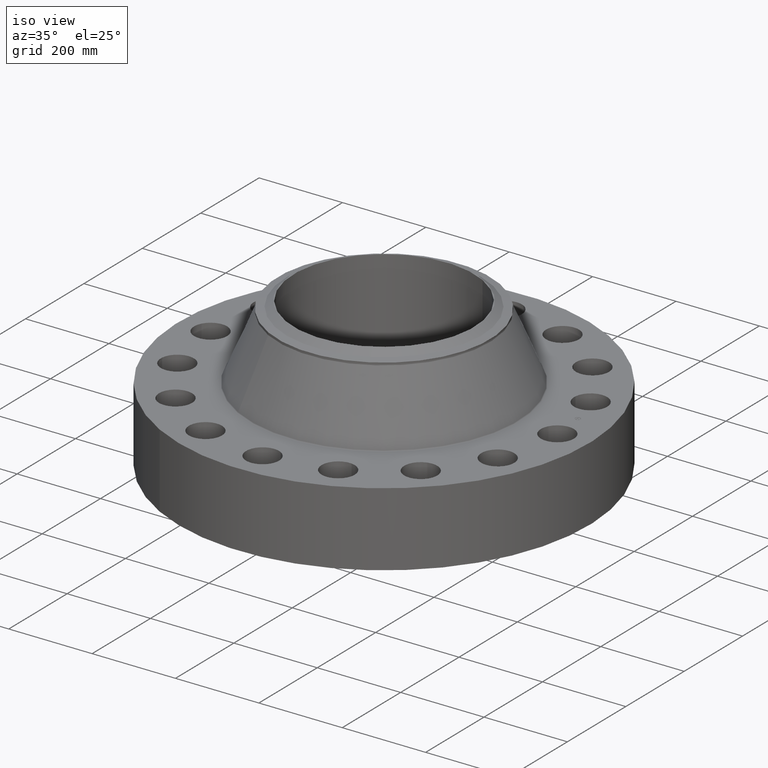
[diagram: clean part render]
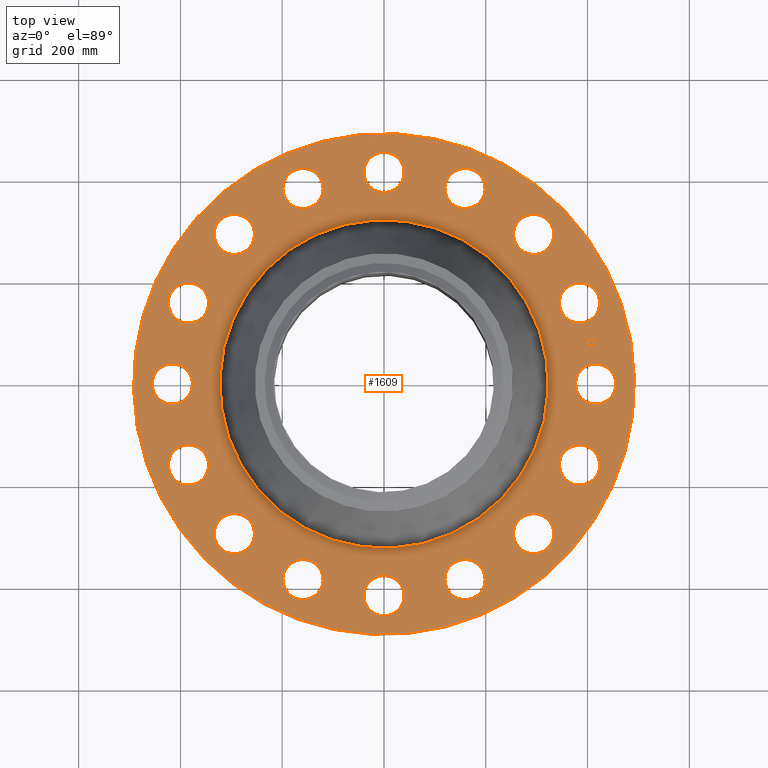
[diagram: tour spotlight — one face highlighted and labeled with its STEP entity id]
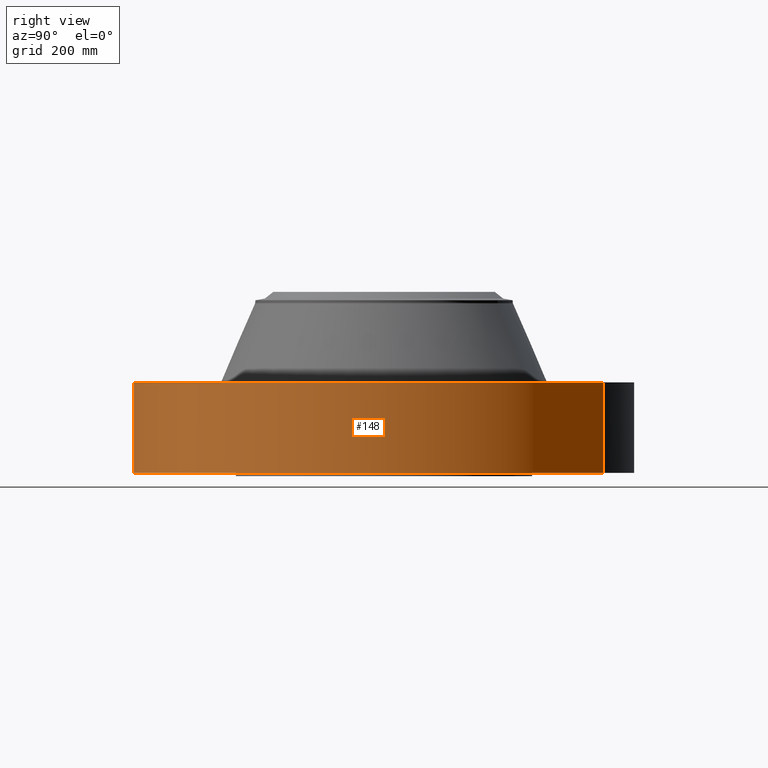
[diagram: tour spotlight — one face highlighted and labeled with its STEP entity id]
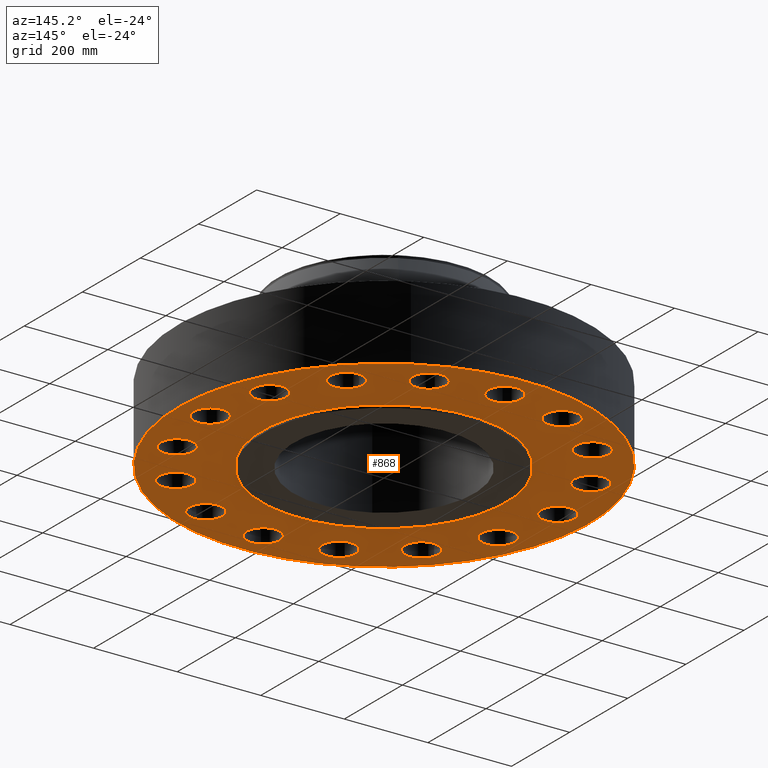
[diagram: tour spotlight — one face highlighted and labeled with its STEP entity id]
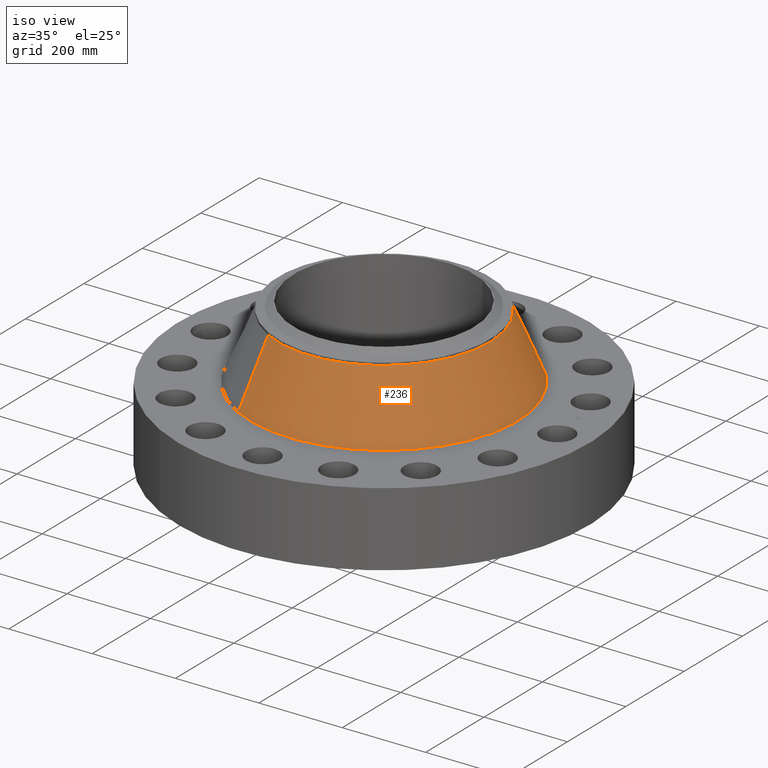
[diagram: tour spotlight — one face highlighted and labeled with its STEP entity id]
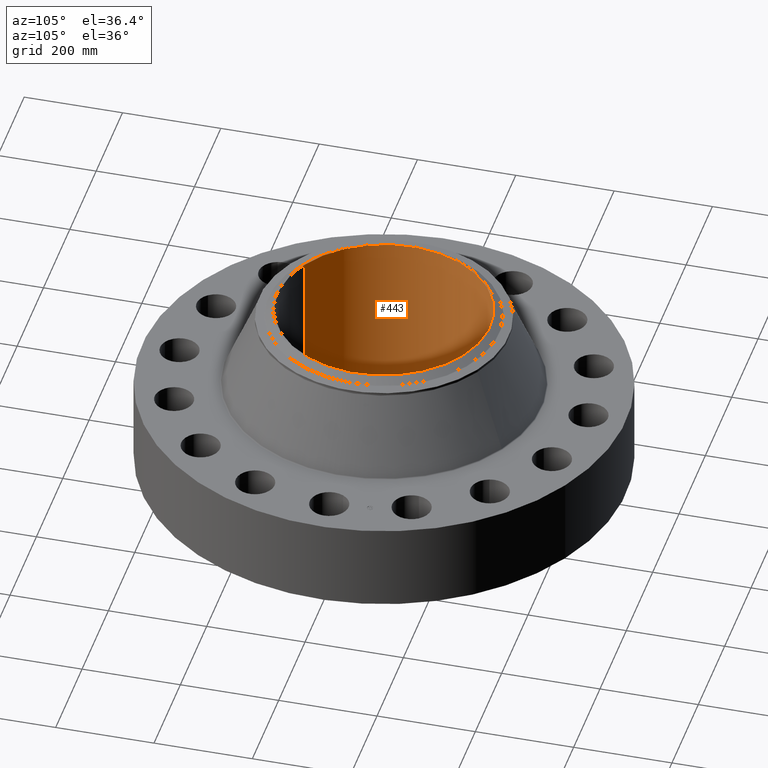
[diagram: tour spotlight — one face highlighted and labeled with its STEP entity id]
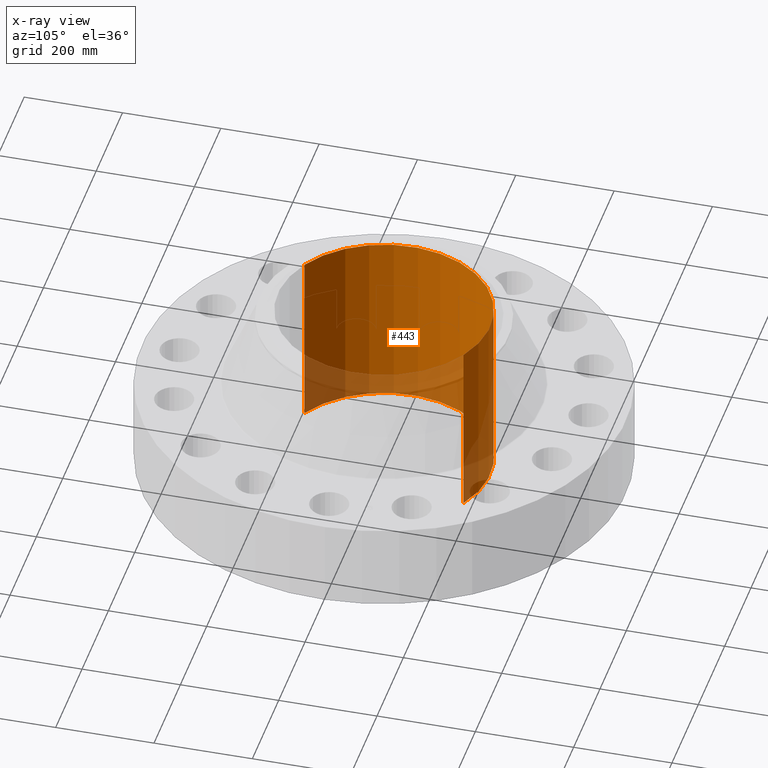
[diagram: x-ray of the same camera — body ghosted, this tour face saturated]
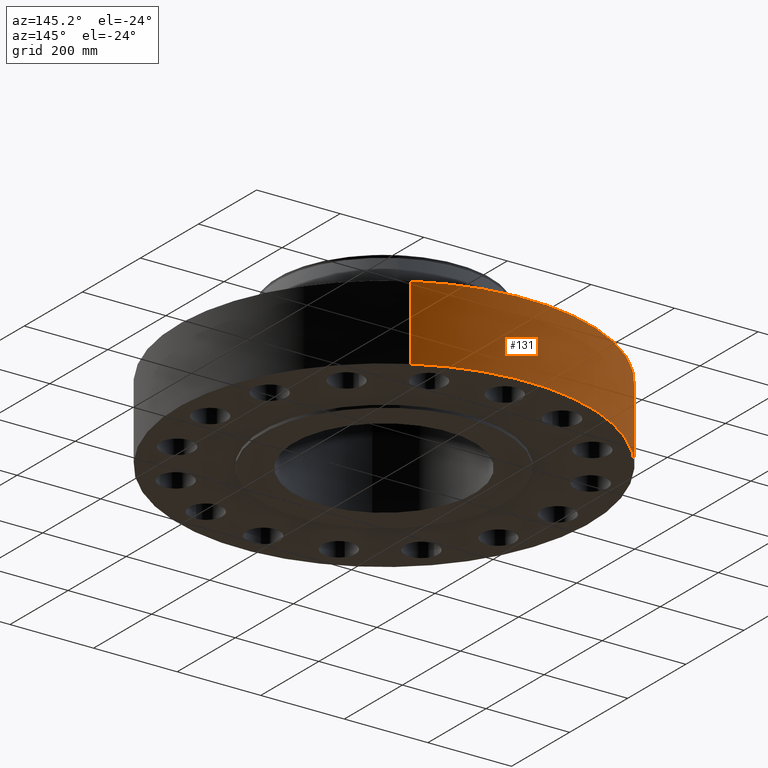
[diagram: tour spotlight — one face highlighted and labeled with its STEP entity id]
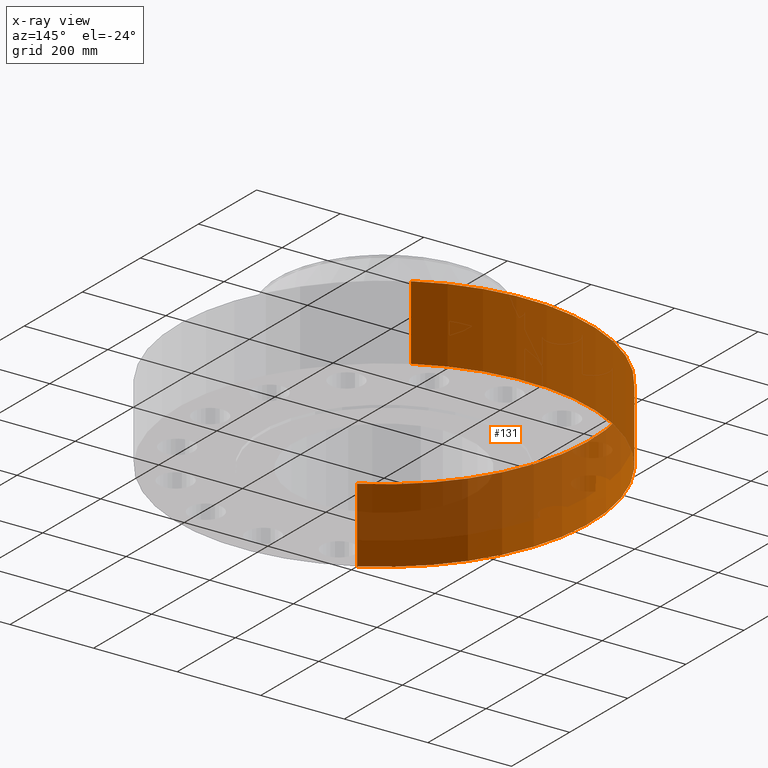
[diagram: x-ray of the same camera — body ghosted, this tour face saturated]
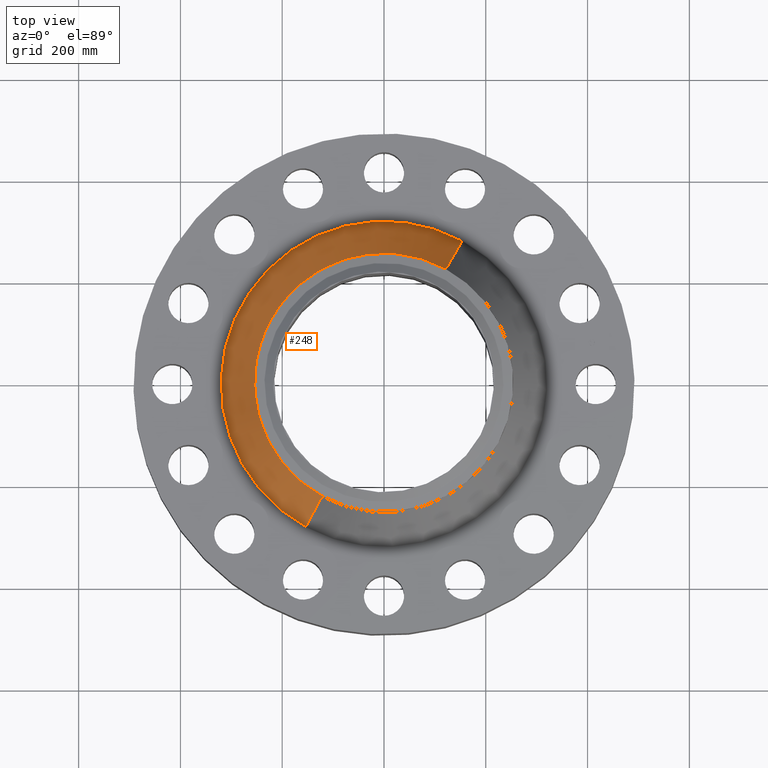
[diagram: tour spotlight — one face highlighted and labeled with its STEP entity id]
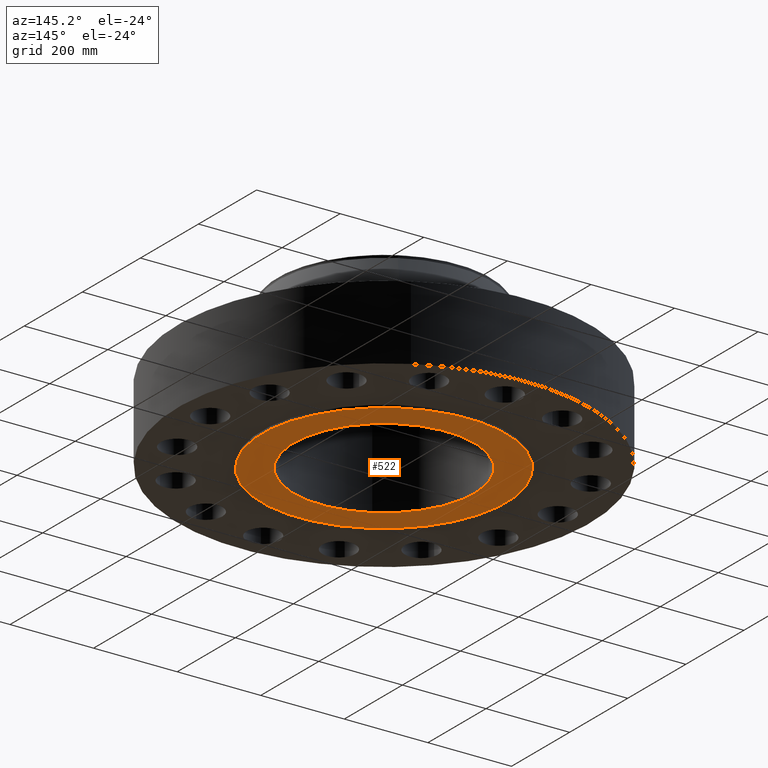
[diagram: tour spotlight — one face highlighted and labeled with its STEP entity id]
A machine part: a face-by-face anatomy tour. The part has 439 B-rep faces; the first image is the clean iso view, then the 8 largest visible faces are spotlighted one at a time (largest first), each with its STEP entity span.

Face 1 — top view, entity #1609. In plain terms, the highlighted planar face has unit normal (0, 0, -1).
Definition (entity closure, byte-faithful):
#65=AXIS2_PLACEMENT_3D('Circle Axis2P3D',#63,#64,$) ;
#82=AXIS2_PLACEMENT_3D('Circle Axis2P3D',#80,#81,$) ;
#115=AXIS2_PLACEMENT_3D('Circle Axis2P3D',#113,#114,$) ;
#139=AXIS2_PLACEMENT_3D('Circle Axis2P3D',#137,#138,$) ;
#156=AXIS2_PLACEMENT_3D('Circle Axis2P3D',#154,#155,$) ;
#191=AXIS2_PLACEMENT_3D('Circle Axis2P3D',#189,#190,$) ;
#890=AXIS2_PLACEMENT_3D('Circle Axis2P3D',#888,#889,$) ;
#902=AXIS2_PLACEMENT_3D('Circle Axis2P3D',#900,#901,$) ;
#933=AXIS2_PLACEMENT_3D('Circle Axis2P3D',#931,#932,$) ;
#945=AXIS2_PLACEMENT_3D('Circle Axis2P3D',#943,#944,$) ;
#976=AXIS2_PLACEMENT_3D('Circle Axis2P3D',#974,#975,$) ;
#988=AXIS2_PLACEMENT_3D('Circle Axis2P3D',#986,#987,$) ;
#1019=AXIS2_PLACEMENT_3D('Circle Axis2P3D',#1017,#1018,$) ;
#1031=AXIS2_PLACEMENT_3D('Circle Axis2P3D',#1029,#1030,$) ;
#1062=AXIS2_PLACEMENT_3D('Circle Axis2P3D',#1060,#1061,$) ;
#1074=AXIS2_PLACEMENT_3D('Circle Axis2P3D',#1072,#1073,$) ;
#1105=AXIS2_PLACEMENT_3D('Circle Axis2P3D',#1103,#1104,$) ;
#1117=AXIS2_PLACEMENT_3D('Circle Axis2P3D',#1115,#1116,$) ;
#1148=AXIS2_PLACEMENT_3D('Circle Axis2P3D',#1146,#1147,$) ;
#1160=AXIS2_PLACEMENT_3D('Circle Axis2P3D',#1158,#1159,$) ;
#1191=AXIS2_PLACEMENT_3D('Circle Axis2P3D',#1189,#1190,$) ;
#1203=AXIS2_PLACEMENT_3D('Circle Axis2P3D',#1201,#1202,$) ;
#1234=AXIS2_PLACEMENT_3D('Circle Axis2P3D',#1232,#1233,$) ;
#1246=AXIS2_PLACEMENT_3D('Circle Axis2P3D',#1244,#1245,$) ;
#1277=AXIS2_PLACEMENT_3D('Circle Axis2P3D',#1275,#1276,$) ;
#1289=AXIS2_PLACEMENT_3D('Circle Axis2P3D',#1287,#1288,$) ;
#1320=AXIS2_PLACEMENT_3D('Circle Axis2P3D',#1318,#1319,$) ;
#1332=AXIS2_PLACEMENT_3D('Circle Axis2P3D',#1330,#1331,$) ;
#1363=AXIS2_PLACEMENT_3D('Circle Axis2P3D',#1361,#1362,$) ;
#1375=AXIS2_PLACEMENT_3D('Circle Axis2P3D',#1373,#1374,$) ;
#1406=AXIS2_PLACEMENT_3D('Circle Axis2P3D',#1404,#1405,$) ;
#1418=AXIS2_PLACEMENT_3D('Circle Axis2P3D',#1416,#1417,$) ;
#1449=AXIS2_PLACEMENT_3D('Circle Axis2P3D',#1447,#1448,$) ;
#1461=AXIS2_PLACEMENT_3D('Circle Axis2P3D',#1459,#1460,$) ;
#1492=AXIS2_PLACEMENT_3D('Circle Axis2P3D',#1490,#1491,$) ;
#1504=AXIS2_PLACEMENT_3D('Circle Axis2P3D',#1502,#1503,$) ;
#1517=AXIS2_PLACEMENT_3D('Plane Axis2P3D',#1514,#1515,#1516) ;
#1593=AXIS2_PLACEMENT_3D('Circle Axis2P3D',#1591,#1592,$) ;
#1602=AXIS2_PLACEMENT_3D('Circle Axis2P3D',#1600,#1601,$) ;
#46=CARTESIAN_POINT('Vertex',(15.0059712035,0.747903840226,7.00000000003)) ;
#60=CARTESIAN_POINT('Vertex',(17.7440287966,-0.747903840226,7.00000000003)) ;
#63=CARTESIAN_POINT('Axis2P3D Location',(16.3750000001,0.,7.00000000003)) ;
#80=CARTESIAN_POINT('Axis2P3D Location',(16.3750000001,0.,7.00000000003)) ;
#110=CARTESIAN_POINT('Vertex',(-9.28886981049,-17.0031621367,7.00000000003)) ;
#113=CARTESIAN_POINT('Axis2P3D Location',(0.,0.,7.00000000003)) ;
#117=CARTESIAN_POINT('Vertex',(9.28886981049,17.0031621367,7.00000000003)) ;
#137=CARTESIAN_POINT('Axis2P3D Location',(0.,0.,7.00000000003)) ;
#154=CARTESIAN_POINT('Axis2P3D Location',(0.,0.,7.00000000003)) ;
#158=CARTESIAN_POINT('Vertex',(6.09066517119,11.1488878129,7.00000000003)) ;
#160=CARTESIAN_POINT('Vertex',(-6.09066517119,-11.1488878129,7.00000000003)) ;
#189=CARTESIAN_POINT('Axis2P3D Location',(0.,0.,7.00000000003)) ;
#878=CARTESIAN_POINT('Vertex',(-14.149920069,5.05156351586,7.00000000003)) ;
#885=CARTESIAN_POINT('Vertex',(-16.1071346208,7.48131889415,7.00000000003)) ;
#888=CARTESIAN_POINT('Axis2P3D Location',(-15.1285273449,6.266441205,7.00000000003)) ;
#900=CARTESIAN_POINT('Axis2P3D Location',(-15.1285273449,6.266441205,7.00000000003)) ;
#921=CARTESIAN_POINT('Vertex',(11.1396718734,-10.0819761192,7.00000000003)) ;
#928=CARTESIAN_POINT('Vertex',(12.0180752106,-13.0757709648,7.00000000003)) ;
#931=CARTESIAN_POINT('Axis2P3D Location',(11.578873542,-11.578873542,7.00000000003)) ;
#943=CARTESIAN_POINT('Axis2P3D Location',(11.578873542,-11.578873542,7.00000000003)) ;
#964=CARTESIAN_POINT('Vertex',(-11.1396718734,10.0819761192,7.00000000003)) ;
#971=CARTESIAN_POINT('Vertex',(-12.0180752106,13.0757709648,7.00000000003)) ;
#974=CARTESIAN_POINT('Axis2P3D Location',(-11.578873542,11.578873542,7.00000000003)) ;
#986=CARTESIAN_POINT('Axis2P3D Location',(-11.578873542,11.578873542,7.00000000003)) ;
#1007=CARTESIAN_POINT('Vertex',(6.4335096164,-13.5774992517,7.00000000003)) ;
#1014=CARTESIAN_POINT('Vertex',(6.0993727936,-16.6795554381,7.00000000003)) ;
#1017=CARTESIAN_POINT('Axis2P3D Location',(6.266441205,-15.1285273449,7.00000000003)) ;
#1029=CARTESIAN_POINT('Axis2P3D Location',(6.266441205,-15.1285273449,7.00000000003)) ;
#1050=CARTESIAN_POINT('Vertex',(-6.4335096164,13.5774992517,7.00000000003)) ;
#1057=CARTESIAN_POINT('Vertex',(-6.0993727936,16.6795554381,7.00000000003)) ;
#1060=CARTESIAN_POINT('Axis2P3D Location',(-6.266441205,15.1285273449,7.00000000003)) ;
#1072=CARTESIAN_POINT('Axis2P3D Location',(-6.266441205,15.1285273449,7.00000000003)) ;
#1093=CARTESIAN_POINT('Vertex',(0.747903840226,-15.0059712035,7.00000000003)) ;
#1100=CARTESIAN_POINT('Vertex',(-0.747903840226,-17.7440287966,7.00000000003)) ;
#1103=CARTESIAN_POINT('Axis2P3D Location',(-1.2352503096E-015,-16.3750000001,7.00000000003)) ;
#1115=CARTESIAN_POINT('Axis2P3D Location',(-1.2352503096E-015,-16.3750000001,7.00000000003)) ;
#1136=CARTESIAN_POINT('Vertex',(-0.747903840226,15.0059712035,7.00000000003)) ;
#1143=CARTESIAN_POINT('Vertex',(0.747903840226,17.7440287966,7.00000000003)) ;
#1146=CARTESIAN_POINT('Axis2P3D Location',(-7.70108824008E-016,16.3750000001,7.00000000003)) ;
#1158=CARTESIAN_POINT('Axis2P3D Location',(-7.70108824008E-016,16.3750000001,7.00000000003)) ;
#1179=CARTESIAN_POINT('Vertex',(-5.05156351586,-14.149920069,7.00000000003)) ;
#1186=CARTESIAN_POINT('Vertex',(-7.48131889415,-16.1071346208,7.00000000003)) ;
#1189=CARTESIAN_POINT('Axis2P3D Location',(-6.266441205,-15.1285273449,7.00000000003)) ;
#1201=CARTESIAN_POINT('Axis2P3D Location',(-6.266441205,-15.1285273449,7.00000000003)) ;
#1222=CARTESIAN_POINT('Vertex',(5.05156351586,14.149920069,7.00000000003)) ;
#1229=CARTESIAN_POINT('Vertex',(7.48131889415,16.1071346208,7.00000000003)) ;
#1232=CARTESIAN_POINT('Axis2P3D Location',(6.266441205,15.1285273449,7.00000000003)) ;
#1244=CARTESIAN_POINT('Axis2P3D Location',(6.266441205,15.1285273449,7.00000000003)) ;
#1265=CARTESIAN_POINT('Vertex',(-10.0819761192,-11.1396718734,7.00000000003)) ;
#1272=CARTESIAN_POINT('Vertex',(-13.0757709648,-12.0180752106,7.00000000003)) ;
#1275=CARTESIAN_POINT('Axis2P3D Location',(-11.578873542,-11.578873542,7.00000000003)) ;
#1287=CARTESIAN_POINT('Axis2P3D Location',(-11.578873542,-11.578873542,7.00000000003)) ;
#1308=CARTESIAN_POINT('Vertex',(10.0819761192,11.1396718734,7.00000000003)) ;
#1315=CARTESIAN_POINT('Vertex',(13.0757709648,12.0180752106,7.00000000003)) ;
#1318=CARTESIAN_POINT('Axis2P3D Location',(11.578873542,11.578873542,7.00000000003)) ;
#1330=CARTESIAN_POINT('Axis2P3D Location',(11.578873542,11.578873542,7.00000000003)) ;
#1351=CARTESIAN_POINT('Vertex',(-13.5774992517,-6.4335096164,7.00000000003)) ;
#1358=CARTESIAN_POINT('Vertex',(-16.6795554381,-6.0993727936,7.00000000003)) ;
#1361=CARTESIAN_POINT('Axis2P3D Location',(-15.1285273449,-6.266441205,7.00000000003)) ;
#1373=CARTESIAN_POINT('Axis2P3D Location',(-15.1285273449,-6.266441205,7.00000000003)) ;
#1394=CARTESIAN_POINT('Vertex',(13.5774992517,6.4335096164,7.00000000003)) ;
#1401=CARTESIAN_POINT('Vertex',(16.6795554381,6.0993727936,7.00000000003)) ;
#1404=CARTESIAN_POINT('Axis2P3D Location',(15.1285273449,6.266441205,7.00000000003)) ;
#1416=CARTESIAN_POINT('Axis2P3D Location',(15.1285273449,6.266441205,7.00000000003)) ;
#1437=CARTESIAN_POINT('Vertex',(-15.0059712035,-0.747903840226,7.00000000003)) ;
#1444=CARTESIAN_POINT('Vertex',(-17.7440287966,0.747903840226,7.00000000003)) ;
#1447=CARTESIAN_POINT('Axis2P3D Location',(-16.3750000001,-2.00535913361E-015,7.00000000003)) ;
#1459=CARTESIAN_POINT('Axis2P3D Location',(-16.3750000001,-2.00535913361E-015,7.00000000003)) ;
#1480=CARTESIAN_POINT('Vertex',(14.149920069,-5.05156351586,7.00000000003)) ;
#1487=CARTESIAN_POINT('Vertex',(16.1071346208,-7.48131889415,7.00000000003)) ;
#1490=CARTESIAN_POINT('Axis2P3D Location',(15.1285273449,-6.266441205,7.00000000003)) ;
#1502=CARTESIAN_POINT('Axis2P3D Location',(15.1285273449,-6.266441205,7.00000000003)) ;
#1514=CARTESIAN_POINT('Axis2P3D Location',(0.,19.3750000001,7.00000000003)) ;
#1591=CARTESIAN_POINT('Axis2P3D Location',(16.0603589667,3.19460402303,7.00000000003)) ;
#1595=CARTESIAN_POINT('Vertex',(16.012074112,3.43734837993,7.00000000003)) ;
#1597=CARTESIAN_POINT('Vertex',(16.1086438214,2.95185966613,7.00000000003)) ;
#1600=CARTESIAN_POINT('Axis2P3D Location',(16.0603589667,3.19460402303,7.00000000003)) ;
#64=DIRECTION('Axis2P3D Direction',(0.,-0.,-0.0393700787402)) ;
#81=DIRECTION('Axis2P3D Direction',(0.,-0.,-0.0393700787402)) ;
#114=DIRECTION('Axis2P3D Direction',(0.,0.,-0.0393700787402)) ;
#138=DIRECTION('Axis2P3D Direction',(0.,0.,-0.0393700787402)) ;
#155=DIRECTION('Axis2P3D Direction',(0.,0.,-0.0393700787402)) ;
#190=DIRECTION('Axis2P3D Direction',(0.,0.,-0.0393700787402)) ;
#889=DIRECTION('Axis2P3D Direction',(0.,0.,-0.0393700787402)) ;
#901=DIRECTION('Axis2P3D Direction',(0.,0.,-0.0393700787402)) ;
#932=DIRECTION('Axis2P3D Direction',(0.,-0.,-0.0393700787402)) ;
#944=DIRECTION('Axis2P3D Direction',(0.,-0.,-0.0393700787402)) ;
#975=DIRECTION('Axis2P3D Direction',(0.,0.,-0.0393700787402)) ;
#987=DIRECTION('Axis2P3D Direction',(0.,0.,-0.0393700787402)) ;
#1018=DIRECTION('Axis2P3D Direction',(0.,-0.,-0.0393700787402)) ;
#1030=DIRECTION('Axis2P3D Direction',(0.,-0.,-0.0393700787402)) ;
#1061=DIRECTION('Axis2P3D Direction',(0.,0.,-0.0393700787402)) ;
#1073=DIRECTION('Axis2P3D Direction',(0.,0.,-0.0393700787402)) ;
#1104=DIRECTION('Axis2P3D Direction',(0.,-0.,-0.0393700787402)) ;
#1116=DIRECTION('Axis2P3D Direction',(0.,-0.,-0.0393700787402)) ;
#1147=DIRECTION('Axis2P3D Direction',(0.,0.,-0.0393700787402)) ;
#1159=DIRECTION('Axis2P3D Direction',(0.,0.,-0.0393700787402)) ;
#1190=DIRECTION('Axis2P3D Direction',(-0.,0.,-0.0393700787402)) ;
#1202=DIRECTION('Axis2P3D Direction',(-0.,0.,-0.0393700787402)) ;
#1233=DIRECTION('Axis2P3D Direction',(0.,0.,-0.0393700787402)) ;
#1245=DIRECTION('Axis2P3D Direction',(0.,0.,-0.0393700787402)) ;
#1276=DIRECTION('Axis2P3D Direction',(-0.,0.,-0.0393700787402)) ;
#1288=DIRECTION('Axis2P3D Direction',(-0.,0.,-0.0393700787402)) ;
#1319=DIRECTION('Axis2P3D Direction',(0.,0.,-0.0393700787402)) ;
#1331=DIRECTION('Axis2P3D Direction',(0.,0.,-0.0393700787402)) ;
#1362=DIRECTION('Axis2P3D Direction',(-0.,0.,-0.0393700787402)) ;
#1374=DIRECTION('Axis2P3D Direction',(-0.,0.,-0.0393700787402)) ;
#1405=DIRECTION('Axis2P3D Direction',(0.,0.,-0.0393700787402)) ;
#1417=DIRECTION('Axis2P3D Direction',(0.,0.,-0.0393700787402)) ;
#1448=DIRECTION('Axis2P3D Direction',(-0.,0.,-0.0393700787402)) ;
#1460=DIRECTION('Axis2P3D Direction',(-0.,0.,-0.0393700787402)) ;
#1491=DIRECTION('Axis2P3D Direction',(0.,-0.,-0.0393700787402)) ;
#1503=DIRECTION('Axis2P3D Direction',(0.,-0.,-0.0393700787402)) ;
#1515=DIRECTION('Axis2P3D Direction',(0.,0.,-0.0393700787402)) ;
#1516=DIRECTION('Axis2P3D XDirection',(0.0393700787402,0.,0.)) ;
#1592=DIRECTION('Axis2P3D Direction',(0.,0.,-0.0393700787402)) ;
#1601=DIRECTION('Axis2P3D Direction',(0.,0.,-0.0393700787402)) ;
#1520=ORIENTED_EDGE('',*,*,#141,.F.) ;
#1521=ORIENTED_EDGE('',*,*,#119,.F.) ;
#1524=ORIENTED_EDGE('',*,*,#67,.T.) ;
#1525=ORIENTED_EDGE('',*,*,#84,.T.) ;
#1528=ORIENTED_EDGE('',*,*,#193,.T.) ;
#1529=ORIENTED_EDGE('',*,*,#162,.T.) ;
#1532=ORIENTED_EDGE('',*,*,#1506,.T.) ;
#1533=ORIENTED_EDGE('',*,*,#1494,.T.) ;
#1536=ORIENTED_EDGE('',*,*,#947,.T.) ;
#1537=ORIENTED_EDGE('',*,*,#935,.T.) ;
#1540=ORIENTED_EDGE('',*,*,#1033,.T.) ;
#1541=ORIENTED_EDGE('',*,*,#1021,.T.) ;
#1544=ORIENTED_EDGE('',*,*,#1119,.T.) ;
#1545=ORIENTED_EDGE('',*,*,#1107,.T.) ;
#1548=ORIENTED_EDGE('',*,*,#1205,.T.) ;
#1549=ORIENTED_EDGE('',*,*,#1193,.T.) ;
#1552=ORIENTED_EDGE('',*,*,#1291,.T.) ;
#1553=ORIENTED_EDGE('',*,*,#1279,.T.) ;
#1556=ORIENTED_EDGE('',*,*,#1377,.T.) ;
#1557=ORIENTED_EDGE('',*,*,#1365,.T.) ;
#1560=ORIENTED_EDGE('',*,*,#1463,.T.) ;
#1561=ORIENTED_EDGE('',*,*,#1451,.T.) ;
#1564=ORIENTED_EDGE('',*,*,#904,.T.) ;
#1565=ORIENTED_EDGE('',*,*,#892,.T.) ;
#1568=ORIENTED_EDGE('',*,*,#990,.T.) ;
#1569=ORIENTED_EDGE('',*,*,#978,.T.) ;
#1572=ORIENTED_EDGE('',*,*,#1076,.T.) ;
#1573=ORIENTED_EDGE('',*,*,#1064,.T.) ;
#1576=ORIENTED_EDGE('',*,*,#1162,.T.) ;
#1577=ORIENTED_EDGE('',*,*,#1150,.T.) ;
#1580=ORIENTED_EDGE('',*,*,#1248,.T.) ;
#1581=ORIENTED_EDGE('',*,*,#1236,.T.) ;
#1584=ORIENTED_EDGE('',*,*,#1334,.T.) ;
#1585=ORIENTED_EDGE('',*,*,#1322,.T.) ;
#1588=ORIENTED_EDGE('',*,*,#1420,.T.) ;
#1589=ORIENTED_EDGE('',*,*,#1408,.T.) ;
#1606=ORIENTED_EDGE('',*,*,#1599,.T.) ;
#1607=ORIENTED_EDGE('',*,*,#1604,.T.) ;
#1526=FACE_BOUND('',#1523,.T.) ;
#1530=FACE_BOUND('',#1527,.T.) ;
#1534=FACE_BOUND('',#1531,.T.) ;
#1538=FACE_BOUND('',#1535,.T.) ;
#1542=FACE_BOUND('',#1539,.T.) ;
#1546=FACE_BOUND('',#1543,.T.) ;
#1550=FACE_BOUND('',#1547,.T.) ;
#1554=FACE_BOUND('',#1551,.T.) ;
#1558=FACE_BOUND('',#1555,.T.) ;
#1562=FACE_BOUND('',#1559,.T.) ;
#1566=FACE_BOUND('',#1563,.T.) ;
#1570=FACE_BOUND('',#1567,.T.) ;
#1574=FACE_BOUND('',#1571,.T.) ;
#1578=FACE_BOUND('',#1575,.T.) ;
#1582=FACE_BOUND('',#1579,.T.) ;
#1586=FACE_BOUND('',#1583,.T.) ;
#1590=FACE_BOUND('',#1587,.T.) ;
#1608=FACE_BOUND('',#1605,.T.) ;
#1609=ADVANCED_FACE('PartBody',(#1522,#1526,#1530,#1534,#1538,#1542,#1546,#1550,#1554,#1558,#1562,#1566,#1570,#1574,#1578,#1582,#1586,#1590,#1608),#1518,.F.) ;
#66=CIRCLE('generated circle',#65,1.56000000001) ;
#83=CIRCLE('generated circle',#82,1.56000000001) ;
#116=CIRCLE('generated circle',#115,19.3750000001) ;
#140=CIRCLE('generated circle',#139,19.3750000001) ;
#157=CIRCLE('generated circle',#156,12.7040899593) ;
#192=CIRCLE('generated circle',#191,12.7040899593) ;
#891=CIRCLE('generated circle',#890,1.56000000001) ;
#903=CIRCLE('generated circle',#902,1.56000000001) ;
#934=CIRCLE('generated circle',#933,1.56000000001) ;
#946=CIRCLE('generated circle',#945,1.56000000001) ;
#977=CIRCLE('generated circle',#976,1.56000000001) ;
#989=CIRCLE('generated circle',#988,1.56000000001) ;
#1020=CIRCLE('generated circle',#1019,1.56000000001) ;
#1032=CIRCLE('generated circle',#1031,1.56000000001) ;
#1063=CIRCLE('generated circle',#1062,1.56000000001) ;
#1075=CIRCLE('generated circle',#1074,1.56000000001) ;
#1106=CIRCLE('generated circle',#1105,1.56000000001) ;
#1118=CIRCLE('generated circle',#1117,1.56000000001) ;
#1149=CIRCLE('generated circle',#1148,1.56000000001) ;
#1161=CIRCLE('generated circle',#1160,1.56000000001) ;
#1192=CIRCLE('generated circle',#1191,1.56000000001) ;
#1204=CIRCLE('generated circle',#1203,1.56000000001) ;
#1235=CIRCLE('generated circle',#1234,1.56000000001) ;
#1247=CIRCLE('generated circle',#1246,1.56000000001) ;
#1278=CIRCLE('generated circle',#1277,1.56000000001) ;
#1290=CIRCLE('generated circle',#1289,1.56000000001) ;
#1321=CIRCLE('generated circle',#1320,1.56000000001) ;
#1333=CIRCLE('generated circle',#1332,1.56000000001) ;
#1364=CIRCLE('generated circle',#1363,1.56000000001) ;
#1376=CIRCLE('generated circle',#1375,1.56000000001) ;
#1407=CIRCLE('generated circle',#1406,1.56000000001) ;
#1419=CIRCLE('generated circle',#1418,1.56000000001) ;
#1450=CIRCLE('generated circle',#1449,1.56000000001) ;
#1462=CIRCLE('generated circle',#1461,1.56000000001) ;
#1493=CIRCLE('generated circle',#1492,1.56000000001) ;
#1505=CIRCLE('generated circle',#1504,1.56000000001) ;
#1594=CIRCLE('generated circle',#1593,0.247500000001) ;
#1603=CIRCLE('generated circle',#1602,0.247500000001) ;
#67=EDGE_CURVE('',#47,#61,#66,.T.) ;
#84=EDGE_CURVE('',#61,#47,#83,.T.) ;
#119=EDGE_CURVE('',#111,#118,#116,.T.) ;
#141=EDGE_CURVE('',#118,#111,#140,.T.) ;
#162=EDGE_CURVE('',#159,#161,#157,.T.) ;
#193=EDGE_CURVE('',#161,#159,#192,.T.) ;
#892=EDGE_CURVE('',#879,#886,#891,.T.) ;
#904=EDGE_CURVE('',#886,#879,#903,.T.) ;
#935=EDGE_CURVE('',#922,#929,#934,.T.) ;
#947=EDGE_CURVE('',#929,#922,#946,.T.) ;
#978=EDGE_CURVE('',#965,#972,#977,.T.) ;
#990=EDGE_CURVE('',#972,#965,#989,.T.) ;
#1021=EDGE_CURVE('',#1008,#1015,#1020,.T.) ;
#1033=EDGE_CURVE('',#1015,#1008,#1032,.T.) ;
#1064=EDGE_CURVE('',#1051,#1058,#1063,.T.) ;
#1076=EDGE_CURVE('',#1058,#1051,#1075,.T.) ;
#1107=EDGE_CURVE('',#1094,#1101,#1106,.T.) ;
#1119=EDGE_CURVE('',#1101,#1094,#1118,.T.) ;
#1150=EDGE_CURVE('',#1137,#1144,#1149,.T.) ;
#1162=EDGE_CURVE('',#1144,#1137,#1161,.T.) ;
#1193=EDGE_CURVE('',#1180,#1187,#1192,.T.) ;
#1205=EDGE_CURVE('',#1187,#1180,#1204,.T.) ;
#1236=EDGE_CURVE('',#1223,#1230,#1235,.T.) ;
#1248=EDGE_CURVE('',#1230,#1223,#1247,.T.) ;
#1279=EDGE_CURVE('',#1266,#1273,#1278,.T.) ;
#1291=EDGE_CURVE('',#1273,#1266,#1290,.T.) ;
#1322=EDGE_CURVE('',#1309,#1316,#1321,.T.) ;
#1334=EDGE_CURVE('',#1316,#1309,#1333,.T.) ;
#1365=EDGE_CURVE('',#1352,#1359,#1364,.T.) ;
#1377=EDGE_CURVE('',#1359,#1352,#1376,.T.) ;
#1408=EDGE_CURVE('',#1395,#1402,#1407,.T.) ;
#1420=EDGE_CURVE('',#1402,#1395,#1419,.T.) ;
#1451=EDGE_CURVE('',#1438,#1445,#1450,.T.) ;
#1463=EDGE_CURVE('',#1445,#1438,#1462,.T.) ;
#1494=EDGE_CURVE('',#1481,#1488,#1493,.T.) ;
#1506=EDGE_CURVE('',#1488,#1481,#1505,.T.) ;
#1599=EDGE_CURVE('',#1596,#1598,#1594,.T.) ;
#1604=EDGE_CURVE('',#1598,#1596,#1603,.T.) ;
#1519=EDGE_LOOP('',(#1520,#1521)) ;
#1523=EDGE_LOOP('',(#1524,#1525)) ;
#1527=EDGE_LOOP('',(#1528,#1529)) ;
#1531=EDGE_LOOP('',(#1532,#1533)) ;
#1535=EDGE_LOOP('',(#1536,#1537)) ;
#1539=EDGE_LOOP('',(#1540,#1541)) ;
#1543=EDGE_LOOP('',(#1544,#1545)) ;
#1547=EDGE_LOOP('',(#1548,#1549)) ;
#1551=EDGE_LOOP('',(#1552,#1553)) ;
#1555=EDGE_LOOP('',(#1556,#1557)) ;
#1559=EDGE_LOOP('',(#1560,#1561)) ;
#1563=EDGE_LOOP('',(#1564,#1565)) ;
#1567=EDGE_LOOP('',(#1568,#1569)) ;
#1571=EDGE_LOOP('',(#1572,#1573)) ;
#1575=EDGE_LOOP('',(#1576,#1577)) ;
#1579=EDGE_LOOP('',(#1580,#1581)) ;
#1583=EDGE_LOOP('',(#1584,#1585)) ;
#1587=EDGE_LOOP('',(#1588,#1589)) ;
#1605=EDGE_LOOP('',(#1606,#1607)) ;
#1522=FACE_OUTER_BOUND('',#1519,.T.) ;
#1518=PLANE('',#1517) ;
#47=VERTEX_POINT('',#46) ;
#61=VERTEX_POINT('',#60) ;
#111=VERTEX_POINT('',#110) ;
#118=VERTEX_POINT('',#117) ;
#159=VERTEX_POINT('',#158) ;
#161=VERTEX_POINT('',#160) ;
#879=VERTEX_POINT('',#878) ;
#886=VERTEX_POINT('',#885) ;
#922=VERTEX_POINT('',#921) ;
#929=VERTEX_POINT('',#928) ;
#965=VERTEX_POINT('',#964) ;
#972=VERTEX_POINT('',#971) ;
#1008=VERTEX_POINT('',#1007) ;
#1015=VERTEX_POINT('',#1014) ;
#1051=VERTEX_POINT('',#1050) ;
#1058=VERTEX_POINT('',#1057) ;
#1094=VERTEX_POINT('',#1093) ;
#1101=VERTEX_POINT('',#1100) ;
#1137=VERTEX_POINT('',#1136) ;
#1144=VERTEX_POINT('',#1143) ;
#1180=VERTEX_POINT('',#1179) ;
#1187=VERTEX_POINT('',#1186) ;
#1223=VERTEX_POINT('',#1222) ;
#1230=VERTEX_POINT('',#1229) ;
#1266=VERTEX_POINT('',#1265) ;
#1273=VERTEX_POINT('',#1272) ;
#1309=VERTEX_POINT('',#1308) ;
#1316=VERTEX_POINT('',#1315) ;
#1352=VERTEX_POINT('',#1351) ;
#1359=VERTEX_POINT('',#1358) ;
#1395=VERTEX_POINT('',#1394) ;
#1402=VERTEX_POINT('',#1401) ;
#1438=VERTEX_POINT('',#1437) ;
#1445=VERTEX_POINT('',#1444) ;
#1481=VERTEX_POINT('',#1480) ;
#1488=VERTEX_POINT('',#1487) ;
#1596=VERTEX_POINT('',#1595) ;
#1598=VERTEX_POINT('',#1597) ;

Face 2 — right view, entity #148. In plain terms, the highlighted cylindrical surface (partial cylindrical patch) has radius 492.125 mm, axis along (0, 0, -1).
Definition (entity closure, byte-faithful):
#95=AXIS2_PLACEMENT_3D('Cylinder Axis2P3D',#92,#93,#94) ;
#134=AXIS2_PLACEMENT_3D('Circle Axis2P3D',#132,#133,$) ;
#139=AXIS2_PLACEMENT_3D('Circle Axis2P3D',#137,#138,$) ;
#92=CARTESIAN_POINT('Axis2P3D Location',(0.,0.,6.87500000003)) ;
#101=CARTESIAN_POINT('Vertex',(-9.28886981049,-17.0031621367,2.23792987641E-015)) ;
#103=CARTESIAN_POINT('Vertex',(9.28886981049,17.0031621367,2.23792987641E-015)) ;
#106=CARTESIAN_POINT('Line Origine',(-9.28886981049,-17.0031621367,3.50000000001)) ;
#110=CARTESIAN_POINT('Vertex',(-9.28886981049,-17.0031621367,7.00000000003)) ;
#117=CARTESIAN_POINT('Vertex',(9.28886981049,17.0031621367,7.00000000003)) ;
#120=CARTESIAN_POINT('Line Origine',(9.28886981049,17.0031621367,3.50000000001)) ;
#132=CARTESIAN_POINT('Axis2P3D Location',(0.,0.,2.23792987641E-015)) ;
#137=CARTESIAN_POINT('Axis2P3D Location',(0.,0.,7.00000000003)) ;
#93=DIRECTION('Axis2P3D Direction',(0.,0.,-0.0393700787402)) ;
#94=DIRECTION('Axis2P3D XDirection',(0.0188750212049,0.0345504945626,0.)) ;
#107=DIRECTION('Vector Direction',(0.,0.,-0.0393700787402)) ;
#121=DIRECTION('Vector Direction',(0.,0.,-0.0393700787402)) ;
#133=DIRECTION('Axis2P3D Direction',(0.,0.,-0.0393700787402)) ;
#138=DIRECTION('Axis2P3D Direction',(0.,0.,-0.0393700787402)) ;
#108=VECTOR('Line Direction',#107,0.0393700787402) ;
#122=VECTOR('Line Direction',#121,0.0393700787402) ;
#143=ORIENTED_EDGE('',*,*,#136,.F.) ;
#144=ORIENTED_EDGE('',*,*,#124,.T.) ;
#145=ORIENTED_EDGE('',*,*,#141,.T.) ;
#146=ORIENTED_EDGE('',*,*,#112,.F.) ;
#148=ADVANCED_FACE('PartBody',(#147),#96,.T.) ;
#135=CIRCLE('generated circle',#134,19.3750000001) ;
#140=CIRCLE('generated circle',#139,19.3750000001) ;
#96=CYLINDRICAL_SURFACE('generated cylinder',#95,19.3750000001) ;
#112=EDGE_CURVE('',#102,#111,#109,.F.) ;
#124=EDGE_CURVE('',#104,#118,#123,.F.) ;
#136=EDGE_CURVE('',#104,#102,#135,.T.) ;
#141=EDGE_CURVE('',#118,#111,#140,.T.) ;
#142=EDGE_LOOP('',(#143,#144,#145,#146)) ;
#147=FACE_OUTER_BOUND('',#142,.T.) ;
#109=LINE('Line',#106,#108) ;
#123=LINE('Line',#120,#122) ;
#102=VERTEX_POINT('',#101) ;
#104=VERTEX_POINT('',#103) ;
#111=VERTEX_POINT('',#110) ;
#118=VERTEX_POINT('',#117) ;

Face 3 — auxiliary view, entity #868. In plain terms, the highlighted planar face has unit normal (0, 0, -1).
Definition (entity closure, byte-faithful):
#51=AXIS2_PLACEMENT_3D('Circle Axis2P3D',#49,#50,$) ;
#77=AXIS2_PLACEMENT_3D('Circle Axis2P3D',#75,#76,$) ;
#99=AXIS2_PLACEMENT_3D('Circle Axis2P3D',#97,#98,$) ;
#134=AXIS2_PLACEMENT_3D('Circle Axis2P3D',#132,#133,$) ;
#552=AXIS2_PLACEMENT_3D('Circle Axis2P3D',#550,#551,$) ;
#571=AXIS2_PLACEMENT_3D('Circle Axis2P3D',#569,#570,$) ;
#584=AXIS2_PLACEMENT_3D('Plane Axis2P3D',#581,#582,#583) ;
#600=AXIS2_PLACEMENT_3D('Circle Axis2P3D',#598,#599,$) ;
#609=AXIS2_PLACEMENT_3D('Circle Axis2P3D',#607,#608,$) ;
#618=AXIS2_PLACEMENT_3D('Circle Axis2P3D',#616,#617,$) ;
#627=AXIS2_PLACEMENT_3D('Circle Axis2P3D',#625,#626,$) ;
#636=AXIS2_PLACEMENT_3D('Circle Axis2P3D',#634,#635,$) ;
#645=AXIS2_PLACEMENT_3D('Circle Axis2P3D',#643,#644,$) ;
#654=AXIS2_PLACEMENT_3D('Circle Axis2P3D',#652,#653,$) ;
#663=AXIS2_PLACEMENT_3D('Circle Axis2P3D',#661,#662,$) ;
#672=AXIS2_PLACEMENT_3D('Circle Axis2P3D',#670,#671,$) ;
#681=AXIS2_PLACEMENT_3D('Circle Axis2P3D',#679,#680,$) ;
#690=AXIS2_PLACEMENT_3D('Circle Axis2P3D',#688,#689,$) ;
#699=AXIS2_PLACEMENT_3D('Circle Axis2P3D',#697,#698,$) ;
#708=AXIS2_PLACEMENT_3D('Circle Axis2P3D',#706,#707,$) ;
#717=AXIS2_PLACEMENT_3D('Circle Axis2P3D',#715,#716,$) ;
#726=AXIS2_PLACEMENT_3D('Circle Axis2P3D',#724,#725,$) ;
#735=AXIS2_PLACEMENT_3D('Circle Axis2P3D',#733,#734,$) ;
#744=AXIS2_PLACEMENT_3D('Circle Axis2P3D',#742,#743,$) ;
#753=AXIS2_PLACEMENT_3D('Circle Axis2P3D',#751,#752,$) ;
#762=AXIS2_PLACEMENT_3D('Circle Axis2P3D',#760,#761,$) ;
#771=AXIS2_PLACEMENT_3D('Circle Axis2P3D',#769,#770,$) ;
#780=AXIS2_PLACEMENT_3D('Circle Axis2P3D',#778,#779,$) ;
#789=AXIS2_PLACEMENT_3D('Circle Axis2P3D',#787,#788,$) ;
#798=AXIS2_PLACEMENT_3D('Circle Axis2P3D',#796,#797,$) ;
#807=AXIS2_PLACEMENT_3D('Circle Axis2P3D',#805,#806,$) ;
#816=AXIS2_PLACEMENT_3D('Circle Axis2P3D',#814,#815,$) ;
#825=AXIS2_PLACEMENT_3D('Circle Axis2P3D',#823,#824,$) ;
#834=AXIS2_PLACEMENT_3D('Circle Axis2P3D',#832,#833,$) ;
#843=AXIS2_PLACEMENT_3D('Circle Axis2P3D',#841,#842,$) ;
#852=AXIS2_PLACEMENT_3D('Circle Axis2P3D',#850,#851,$) ;
#861=AXIS2_PLACEMENT_3D('Circle Axis2P3D',#859,#860,$) ;
#44=CARTESIAN_POINT('Vertex',(15.0059712035,0.747903840226,0.)) ;
#49=CARTESIAN_POINT('Axis2P3D Location',(16.3750000001,0.,0.)) ;
#53=CARTESIAN_POINT('Vertex',(17.7440287966,-0.747903840226,0.)) ;
#75=CARTESIAN_POINT('Axis2P3D Location',(16.3750000001,0.,0.)) ;
#97=CARTESIAN_POINT('Axis2P3D Location',(0.,0.,2.23792987641E-015)) ;
#101=CARTESIAN_POINT('Vertex',(-9.28886981049,-17.0031621367,2.23792987641E-015)) ;
#103=CARTESIAN_POINT('Vertex',(9.28886981049,17.0031621367,2.23792987641E-015)) ;
#132=CARTESIAN_POINT('Axis2P3D Location',(0.,0.,2.23792987641E-015)) ;
#547=CARTESIAN_POINT('Vertex',(-5.51339369397,-10.0921994618,0.)) ;
#550=CARTESIAN_POINT('Axis2P3D Location',(0.,0.,1.1189649382E-015)) ;
#554=CARTESIAN_POINT('Vertex',(5.51339369397,10.0921994618,0.)) ;
#569=CARTESIAN_POINT('Axis2P3D Location',(0.,0.,1.1189649382E-015)) ;
#581=CARTESIAN_POINT('Axis2P3D Location',(0.,11.5,0.)) ;
#598=CARTESIAN_POINT('Axis2P3D Location',(15.1285273449,-6.266441205,0.)) ;
#602=CARTESIAN_POINT('Vertex',(14.149920069,-5.05156351586,0.)) ;
#604=CARTESIAN_POINT('Vertex',(16.1071346208,-7.48131889415,0.)) ;
#607=CARTESIAN_POINT('Axis2P3D Location',(15.1285273449,-6.266441205,0.)) ;
#616=CARTESIAN_POINT('Axis2P3D Location',(11.578873542,-11.578873542,0.)) ;
#620=CARTESIAN_POINT('Vertex',(11.1396718734,-10.0819761192,0.)) ;
#622=CARTESIAN_POINT('Vertex',(12.0180752106,-13.0757709648,0.)) ;
#625=CARTESIAN_POINT('Axis2P3D Location',(11.578873542,-11.578873542,0.)) ;
#634=CARTESIAN_POINT('Axis2P3D Location',(6.266441205,-15.1285273449,0.)) ;
#638=CARTESIAN_POINT('Vertex',(6.4335096164,-13.5774992517,0.)) ;
#640=CARTESIAN_POINT('Vertex',(6.0993727936,-16.6795554381,0.)) ;
#643=CARTESIAN_POINT('Axis2P3D Location',(6.266441205,-15.1285273449,0.)) ;
#652=CARTESIAN_POINT('Axis2P3D Location',(-1.53857679003E-015,-16.3750000001,0.)) ;
#656=CARTESIAN_POINT('Vertex',(0.747903840226,-15.0059712035,0.)) ;
#658=CARTESIAN_POINT('Vertex',(-0.747903840226,-17.7440287966,0.)) ;
#661=CARTESIAN_POINT('Axis2P3D Location',(-1.95818864186E-015,-16.3750000001,0.)) ;
#670=CARTESIAN_POINT('Axis2P3D Location',(-6.266441205,-15.1285273449,0.)) ;
#674=CARTESIAN_POINT('Vertex',(-5.05156351586,-14.149920069,0.)) ;
#676=CARTESIAN_POINT('Vertex',(-7.48131889415,-16.1071346208,0.)) ;
#679=CARTESIAN_POINT('Axis2P3D Location',(-6.266441205,-15.1285273449,0.)) ;
#688=CARTESIAN_POINT('Axis2P3D Location',(-11.578873542,-11.578873542,0.)) ;
#692=CARTESIAN_POINT('Vertex',(-10.0819761192,-11.1396718734,0.)) ;
#694=CARTESIAN_POINT('Vertex',(-13.0757709648,-12.0180752106,0.)) ;
#697=CARTESIAN_POINT('Axis2P3D Location',(-11.578873542,-11.578873542,0.)) ;
#706=CARTESIAN_POINT('Axis2P3D Location',(-15.1285273449,-6.266441205,0.)) ;
#710=CARTESIAN_POINT('Vertex',(-13.5774992517,-6.4335096164,0.)) ;
#712=CARTESIAN_POINT('Vertex',(-16.6795554381,-6.0993727936,0.)) ;
#715=CARTESIAN_POINT('Axis2P3D Location',(-15.1285273449,-6.266441205,0.)) ;
#724=CARTESIAN_POINT('Axis2P3D Location',(-16.3750000001,-2.23792987641E-015,0.)) ;
#728=CARTESIAN_POINT('Vertex',(-15.0059712035,-0.747903840226,0.)) ;
#730=CARTESIAN_POINT('Vertex',(-17.7440287966,0.747903840226,0.)) ;
#733=CARTESIAN_POINT('Axis2P3D Location',(-16.3750000001,-2.23792987641E-015,0.)) ;
#742=CARTESIAN_POINT('Axis2P3D Location',(-15.1285273449,6.266441205,0.)) ;
#746=CARTESIAN_POINT('Vertex',(-14.149920069,5.05156351586,0.)) ;
#748=CARTESIAN_POINT('Vertex',(-16.1071346208,7.48131889415,0.)) ;
#751=CARTESIAN_POINT('Axis2P3D Location',(-15.1285273449,6.266441205,0.)) ;
#760=CARTESIAN_POINT('Axis2P3D Location',(-11.578873542,11.578873542,0.)) ;
#764=CARTESIAN_POINT('Vertex',(-11.1396718734,10.0819761192,0.)) ;
#766=CARTESIAN_POINT('Vertex',(-12.0180752106,13.0757709648,0.)) ;
#769=CARTESIAN_POINT('Axis2P3D Location',(-11.578873542,11.578873542,0.)) ;
#778=CARTESIAN_POINT('Axis2P3D Location',(-6.266441205,15.1285273449,0.)) ;
#782=CARTESIAN_POINT('Vertex',(-6.4335096164,13.5774992517,0.)) ;
#784=CARTESIAN_POINT('Vertex',(-6.0993727936,16.6795554381,0.)) ;
#787=CARTESIAN_POINT('Axis2P3D Location',(-6.266441205,15.1285273449,0.)) ;
#796=CARTESIAN_POINT('Axis2P3D Location',(-4.19611851827E-016,16.3750000001,0.)) ;
#800=CARTESIAN_POINT('Vertex',(-0.747903840226,15.0059712035,0.)) ;
#802=CARTESIAN_POINT('Vertex',(0.747903840226,17.7440287966,0.)) ;
#805=CARTESIAN_POINT('Axis2P3D Location',(-1.39870617276E-015,16.3750000001,0.)) ;
#814=CARTESIAN_POINT('Axis2P3D Location',(6.266441205,15.1285273449,0.)) ;
#818=CARTESIAN_POINT('Vertex',(5.05156351586,14.149920069,0.)) ;
#820=CARTESIAN_POINT('Vertex',(7.48131889415,16.1071346208,-6.71378962923E-015)) ;
#823=CARTESIAN_POINT('Axis2P3D Location',(6.266441205,15.1285273449,0.)) ;
#832=CARTESIAN_POINT('Axis2P3D Location',(11.578873542,11.578873542,0.)) ;
#836=CARTESIAN_POINT('Vertex',(10.0819761192,11.1396718734,0.)) ;
#838=CARTESIAN_POINT('Vertex',(13.0757709648,12.0180752106,0.)) ;
#841=CARTESIAN_POINT('Axis2P3D Location',(11.578873542,11.578873542,0.)) ;
#850=CARTESIAN_POINT('Axis2P3D Location',(15.1285273449,6.266441205,0.)) ;
#854=CARTESIAN_POINT('Vertex',(13.5774992517,6.4335096164,0.)) ;
#856=CARTESIAN_POINT('Vertex',(16.6795554381,6.0993727936,0.)) ;
#859=CARTESIAN_POINT('Axis2P3D Location',(15.1285273449,6.266441205,0.)) ;
#50=DIRECTION('Axis2P3D Direction',(0.,-0.,-0.0393700787402)) ;
#76=DIRECTION('Axis2P3D Direction',(0.,-0.,-0.0393700787402)) ;
#98=DIRECTION('Axis2P3D Direction',(0.,0.,-0.0393700787402)) ;
#133=DIRECTION('Axis2P3D Direction',(0.,0.,-0.0393700787402)) ;
#551=DIRECTION('Axis2P3D Direction',(0.,0.,-0.0393700787402)) ;
#570=DIRECTION('Axis2P3D Direction',(0.,0.,-0.0393700787402)) ;
#582=DIRECTION('Axis2P3D Direction',(0.,0.,-0.0393700787402)) ;
#583=DIRECTION('Axis2P3D XDirection',(0.0393700787402,0.,0.)) ;
#599=DIRECTION('Axis2P3D Direction',(0.,0.,-0.0393700787402)) ;
#608=DIRECTION('Axis2P3D Direction',(0.,0.,-0.0393700787402)) ;
#617=DIRECTION('Axis2P3D Direction',(0.,0.,-0.0393700787402)) ;
#626=DIRECTION('Axis2P3D Direction',(0.,0.,-0.0393700787402)) ;
#635=DIRECTION('Axis2P3D Direction',(0.,0.,-0.0393700787402)) ;
#644=DIRECTION('Axis2P3D Direction',(0.,0.,-0.0393700787402)) ;
#653=DIRECTION('Axis2P3D Direction',(0.,0.,-0.0393700787402)) ;
#662=DIRECTION('Axis2P3D Direction',(0.,0.,-0.0393700787402)) ;
#671=DIRECTION('Axis2P3D Direction',(0.,0.,-0.0393700787402)) ;
#680=DIRECTION('Axis2P3D Direction',(0.,0.,-0.0393700787402)) ;
#689=DIRECTION('Axis2P3D Direction',(0.,0.,-0.0393700787402)) ;
#698=DIRECTION('Axis2P3D Direction',(0.,0.,-0.0393700787402)) ;
#707=DIRECTION('Axis2P3D Direction',(0.,0.,-0.0393700787402)) ;
#716=DIRECTION('Axis2P3D Direction',(0.,0.,-0.0393700787402)) ;
#725=DIRECTION('Axis2P3D Direction',(0.,0.,-0.0393700787402)) ;
#734=DIRECTION('Axis2P3D Direction',(0.,0.,-0.0393700787402)) ;
#743=DIRECTION('Axis2P3D Direction',(0.,0.,-0.0393700787402)) ;
#752=DIRECTION('Axis2P3D Direction',(0.,0.,-0.0393700787402)) ;
#761=DIRECTION('Axis2P3D Direction',(0.,0.,-0.0393700787402)) ;
#770=DIRECTION('Axis2P3D Direction',(0.,0.,-0.0393700787402)) ;
#779=DIRECTION('Axis2P3D Direction',(0.,0.,-0.0393700787402)) ;
#788=DIRECTION('Axis2P3D Direction',(0.,0.,-0.0393700787402)) ;
#797=DIRECTION('Axis2P3D Direction',(0.,0.,-0.0393700787402)) ;
#806=DIRECTION('Axis2P3D Direction',(0.,0.,-0.0393700787402)) ;
#815=DIRECTION('Axis2P3D Direction',(0.,0.,-0.0393700787402)) ;
#824=DIRECTION('Axis2P3D Direction',(0.,0.,-0.0393700787402)) ;
#833=DIRECTION('Axis2P3D Direction',(0.,0.,-0.0393700787402)) ;
#842=DIRECTION('Axis2P3D Direction',(0.,0.,-0.0393700787402)) ;
#851=DIRECTION('Axis2P3D Direction',(0.,0.,-0.0393700787402)) ;
#860=DIRECTION('Axis2P3D Direction',(0.,0.,-0.0393700787402)) ;
#587=ORIENTED_EDGE('',*,*,#105,.T.) ;
#588=ORIENTED_EDGE('',*,*,#136,.T.) ;
#591=ORIENTED_EDGE('',*,*,#79,.F.) ;
#592=ORIENTED_EDGE('',*,*,#55,.F.) ;
#595=ORIENTED_EDGE('',*,*,#573,.F.) ;
#596=ORIENTED_EDGE('',*,*,#556,.F.) ;
#613=ORIENTED_EDGE('',*,*,#606,.F.) ;
#614=ORIENTED_EDGE('',*,*,#611,.F.) ;
#631=ORIENTED_EDGE('',*,*,#624,.F.) ;
#632=ORIENTED_EDGE('',*,*,#629,.F.) ;
#649=ORIENTED_EDGE('',*,*,#642,.F.) ;
#650=ORIENTED_EDGE('',*,*,#647,.F.) ;
#667=ORIENTED_EDGE('',*,*,#660,.F.) ;
#668=ORIENTED_EDGE('',*,*,#665,.F.) ;
#685=ORIENTED_EDGE('',*,*,#678,.F.) ;
#686=ORIENTED_EDGE('',*,*,#683,.F.) ;
#703=ORIENTED_EDGE('',*,*,#696,.F.) ;
#704=ORIENTED_EDGE('',*,*,#701,.F.) ;
#721=ORIENTED_EDGE('',*,*,#714,.F.) ;
#722=ORIENTED_EDGE('',*,*,#719,.F.) ;
#739=ORIENTED_EDGE('',*,*,#732,.F.) ;
#740=ORIENTED_EDGE('',*,*,#737,.F.) ;
#757=ORIENTED_EDGE('',*,*,#750,.F.) ;
#758=ORIENTED_EDGE('',*,*,#755,.F.) ;
#775=ORIENTED_EDGE('',*,*,#768,.F.) ;
#776=ORIENTED_EDGE('',*,*,#773,.F.) ;
#793=ORIENTED_EDGE('',*,*,#786,.F.) ;
#794=ORIENTED_EDGE('',*,*,#791,.F.) ;
#811=ORIENTED_EDGE('',*,*,#804,.F.) ;
#812=ORIENTED_EDGE('',*,*,#809,.F.) ;
#829=ORIENTED_EDGE('',*,*,#822,.F.) ;
#830=ORIENTED_EDGE('',*,*,#827,.F.) ;
#847=ORIENTED_EDGE('',*,*,#840,.F.) ;
#848=ORIENTED_EDGE('',*,*,#845,.F.) ;
#865=ORIENTED_EDGE('',*,*,#858,.F.) ;
#866=ORIENTED_EDGE('',*,*,#863,.F.) ;
#593=FACE_BOUND('',#590,.T.) ;
#597=FACE_BOUND('',#594,.T.) ;
#615=FACE_BOUND('',#612,.T.) ;
#633=FACE_BOUND('',#630,.T.) ;
#651=FACE_BOUND('',#648,.T.) ;
#669=FACE_BOUND('',#666,.T.) ;
#687=FACE_BOUND('',#684,.T.) ;
#705=FACE_BOUND('',#702,.T.) ;
#723=FACE_BOUND('',#720,.T.) ;
#741=FACE_BOUND('',#738,.T.) ;
#759=FACE_BOUND('',#756,.T.) ;
#777=FACE_BOUND('',#774,.T.) ;
#795=FACE_BOUND('',#792,.T.) ;
#813=FACE_BOUND('',#810,.T.) ;
#831=FACE_BOUND('',#828,.T.) ;
#849=FACE_BOUND('',#846,.T.) ;
#867=FACE_BOUND('',#864,.T.) ;
#868=ADVANCED_FACE('PartBody',(#589,#593,#597,#615,#633,#651,#669,#687,#705,#723,#741,#759,#777,#795,#813,#831,#849,#867),#585,.T.) ;
#52=CIRCLE('generated circle',#51,1.56000000001) ;
#78=CIRCLE('generated circle',#77,1.56000000001) ;
#100=CIRCLE('generated circle',#99,19.3750000001) ;
#135=CIRCLE('generated circle',#134,19.3750000001) ;
#553=CIRCLE('generated circle',#552,11.5) ;
#572=CIRCLE('generated circle',#571,11.5) ;
#601=CIRCLE('generated circle',#600,1.56000000001) ;
#610=CIRCLE('generated circle',#609,1.56000000001) ;
#619=CIRCLE('generated circle',#618,1.56000000001) ;
#628=CIRCLE('generated circle',#627,1.56000000001) ;
#637=CIRCLE('generated circle',#636,1.56000000001) ;
#646=CIRCLE('generated circle',#645,1.56000000001) ;
#655=CIRCLE('generated circle',#654,1.56000000001) ;
#664=CIRCLE('generated circle',#663,1.56000000001) ;
#673=CIRCLE('generated circle',#672,1.56000000001) ;
#682=CIRCLE('generated circle',#681,1.56000000001) ;
#691=CIRCLE('generated circle',#690,1.56000000001) ;
#700=CIRCLE('generated circle',#699,1.56000000001) ;
#709=CIRCLE('generated circle',#708,1.56000000001) ;
#718=CIRCLE('generated circle',#717,1.56000000001) ;
#727=CIRCLE('generated circle',#726,1.56000000001) ;
#736=CIRCLE('generated circle',#735,1.56000000001) ;
#745=CIRCLE('generated circle',#744,1.56000000001) ;
#754=CIRCLE('generated circle',#753,1.56000000001) ;
#763=CIRCLE('generated circle',#762,1.56000000001) ;
#772=CIRCLE('generated circle',#771,1.56000000001) ;
#781=CIRCLE('generated circle',#780,1.56000000001) ;
#790=CIRCLE('generated circle',#789,1.56000000001) ;
#799=CIRCLE('generated circle',#798,1.56000000001) ;
#808=CIRCLE('generated circle',#807,1.56000000001) ;
#817=CIRCLE('generated circle',#816,1.56000000001) ;
#826=CIRCLE('generated circle',#825,1.56000000001) ;
#835=CIRCLE('generated circle',#834,1.56000000001) ;
#844=CIRCLE('generated circle',#843,1.56000000001) ;
#853=CIRCLE('generated circle',#852,1.56000000001) ;
#862=CIRCLE('generated circle',#861,1.56000000001) ;
#55=EDGE_CURVE('',#45,#54,#52,.T.) ;
#79=EDGE_CURVE('',#54,#45,#78,.T.) ;
#105=EDGE_CURVE('',#102,#104,#100,.T.) ;
#136=EDGE_CURVE('',#104,#102,#135,.T.) ;
#556=EDGE_CURVE('',#548,#555,#553,.T.) ;
#573=EDGE_CURVE('',#555,#548,#572,.T.) ;
#606=EDGE_CURVE('',#603,#605,#601,.T.) ;
#611=EDGE_CURVE('',#605,#603,#610,.T.) ;
#624=EDGE_CURVE('',#621,#623,#619,.T.) ;
#629=EDGE_CURVE('',#623,#621,#628,.T.) ;
#642=EDGE_CURVE('',#639,#641,#637,.T.) ;
#647=EDGE_CURVE('',#641,#639,#646,.T.) ;
#660=EDGE_CURVE('',#657,#659,#655,.T.) ;
#665=EDGE_CURVE('',#659,#657,#664,.T.) ;
#678=EDGE_CURVE('',#675,#677,#673,.T.) ;
#683=EDGE_CURVE('',#677,#675,#682,.T.) ;
#696=EDGE_CURVE('',#693,#695,#691,.T.) ;
#701=EDGE_CURVE('',#695,#693,#700,.T.) ;
#714=EDGE_CURVE('',#711,#713,#709,.T.) ;
#719=EDGE_CURVE('',#713,#711,#718,.T.) ;
#732=EDGE_CURVE('',#729,#731,#727,.T.) ;
#737=EDGE_CURVE('',#731,#729,#736,.T.) ;
#750=EDGE_CURVE('',#747,#749,#745,.T.) ;
#755=EDGE_CURVE('',#749,#747,#754,.T.) ;
#768=EDGE_CURVE('',#765,#767,#763,.T.) ;
#773=EDGE_CURVE('',#767,#765,#772,.T.) ;
#786=EDGE_CURVE('',#783,#785,#781,.T.) ;
#791=EDGE_CURVE('',#785,#783,#790,.T.) ;
#804=EDGE_CURVE('',#801,#803,#799,.T.) ;
#809=EDGE_CURVE('',#803,#801,#808,.T.) ;
#822=EDGE_CURVE('',#819,#821,#817,.T.) ;
#827=EDGE_CURVE('',#821,#819,#826,.T.) ;
#840=EDGE_CURVE('',#837,#839,#835,.T.) ;
#845=EDGE_CURVE('',#839,#837,#844,.T.) ;
#858=EDGE_CURVE('',#855,#857,#853,.T.) ;
#863=EDGE_CURVE('',#857,#855,#862,.T.) ;
#586=EDGE_LOOP('',(#587,#588)) ;
#590=EDGE_LOOP('',(#591,#592)) ;
#594=EDGE_LOOP('',(#595,#596)) ;
#612=EDGE_LOOP('',(#613,#614)) ;
#630=EDGE_LOOP('',(#631,#632)) ;
#648=EDGE_LOOP('',(#649,#650)) ;
#666=EDGE_LOOP('',(#667,#668)) ;
#684=EDGE_LOOP('',(#685,#686)) ;
#702=EDGE_LOOP('',(#703,#704)) ;
#720=EDGE_LOOP('',(#721,#722)) ;
#738=EDGE_LOOP('',(#739,#740)) ;
#756=EDGE_LOOP('',(#757,#758)) ;
#774=EDGE_LOOP('',(#775,#776)) ;
#792=EDGE_LOOP('',(#793,#794)) ;
#810=EDGE_LOOP('',(#811,#812)) ;
#828=EDGE_LOOP('',(#829,#830)) ;
#846=EDGE_LOOP('',(#847,#848)) ;
#864=EDGE_LOOP('',(#865,#866)) ;
#589=FACE_OUTER_BOUND('',#586,.T.) ;
#585=PLANE('',#584) ;
#45=VERTEX_POINT('',#44) ;
#54=VERTEX_POINT('',#53) ;
#102=VERTEX_POINT('',#101) ;
#104=VERTEX_POINT('',#103) ;
#548=VERTEX_POINT('',#547) ;
#555=VERTEX_POINT('',#554) ;
#603=VERTEX_POINT('',#602) ;
#605=VERTEX_POINT('',#604) ;
#621=VERTEX_POINT('',#620) ;
#623=VERTEX_POINT('',#622) ;
#639=VERTEX_POINT('',#638) ;
#641=VERTEX_POINT('',#640) ;
#657=VERTEX_POINT('',#656) ;
#659=VERTEX_POINT('',#658) ;
#675=VERTEX_POINT('',#674) ;
#677=VERTEX_POINT('',#676) ;
#693=VERTEX_POINT('',#692) ;
#695=VERTEX_POINT('',#694) ;
#711=VERTEX_POINT('',#710) ;
#713=VERTEX_POINT('',#712) ;
#729=VERTEX_POINT('',#728) ;
#731=VERTEX_POINT('',#730) ;
#747=VERTEX_POINT('',#746) ;
#749=VERTEX_POINT('',#748) ;
#765=VERTEX_POINT('',#764) ;
#767=VERTEX_POINT('',#766) ;
#783=VERTEX_POINT('',#782) ;
#785=VERTEX_POINT('',#784) ;
#801=VERTEX_POINT('',#800) ;
#803=VERTEX_POINT('',#802) ;
#819=VERTEX_POINT('',#818) ;
#821=VERTEX_POINT('',#820) ;
#837=VERTEX_POINT('',#836) ;
#839=VERTEX_POINT('',#838) ;
#855=VERTEX_POINT('',#854) ;
#857=VERTEX_POINT('',#856) ;

Face 4 — iso view, entity #236. In plain terms, the highlighted conical surface has half-angle 23.224 deg.
Definition (entity closure, byte-faithful):
#172=AXIS2_PLACEMENT_3D('Circle Axis2P3D',#170,#171,$) ;
#209=AXIS2_PLACEMENT_3D('Cone Axis2P3D',#206,#207,#208) ;
#220=AXIS2_PLACEMENT_3D('Circle Axis2P3D',#218,#219,$) ;
#167=CARTESIAN_POINT('Vertex',(6.03779567834,11.0521108554,7.07268153407)) ;
#170=CARTESIAN_POINT('Axis2P3D Location',(0.,0.,7.07268153407)) ;
#174=CARTESIAN_POINT('Vertex',(-6.03779567834,-11.0521108554,7.07268153407)) ;
#206=CARTESIAN_POINT('Axis2P3D Location',(0.,0.,13.1176218848)) ;
#211=CARTESIAN_POINT('Line Origine',(5.4160255322,9.91396823718,10.0951517094)) ;
#215=CARTESIAN_POINT('Vertex',(4.79425538606,8.77582561894,13.1176218848)) ;
#218=CARTESIAN_POINT('Axis2P3D Location',(0.,0.,13.1176218848)) ;
#222=CARTESIAN_POINT('Vertex',(-4.79425538606,-8.77582561894,13.1176218848)) ;
#225=CARTESIAN_POINT('Line Origine',(-5.4160255322,-9.91396823718,10.0951517094)) ;
#171=DIRECTION('Axis2P3D Direction',(0.,0.,-0.0393700787402)) ;
#207=DIRECTION('Axis2P3D Direction',(0.,0.,-0.0393700787402)) ;
#208=DIRECTION('Axis2P3D XDirection',(-0.0188750212049,-0.0345504945626,0.)) ;
#212=DIRECTION('Vector Direction',(0.0074428087362,0.0136239700067,-0.0361800378576)) ;
#219=DIRECTION('Axis2P3D Direction',(0.,0.,-0.0393700787402)) ;
#226=DIRECTION('Vector Direction',(-0.0074428087362,-0.0136239700067,-0.0361800378576)) ;
#213=VECTOR('Line Direction',#212,0.0393700787402) ;
#227=VECTOR('Line Direction',#226,0.0393700787402) ;
#231=ORIENTED_EDGE('',*,*,#176,.F.) ;
#232=ORIENTED_EDGE('',*,*,#217,.T.) ;
#233=ORIENTED_EDGE('',*,*,#224,.T.) ;
#234=ORIENTED_EDGE('',*,*,#229,.F.) ;
#236=ADVANCED_FACE('PartBody',(#235),#210,.T.) ;
#173=CIRCLE('generated circle',#172,12.5938132039) ;
#221=CIRCLE('generated circle',#220,10.) ;
#210=CONICAL_SURFACE('Cone',#209,10.,0.405328375305) ;
#176=EDGE_CURVE('',#168,#175,#173,.T.) ;
#217=EDGE_CURVE('',#168,#216,#214,.F.) ;
#224=EDGE_CURVE('',#216,#223,#221,.T.) ;
#229=EDGE_CURVE('',#175,#223,#228,.F.) ;
#230=EDGE_LOOP('',(#231,#232,#233,#234)) ;
#235=FACE_OUTER_BOUND('',#230,.T.) ;
#214=LINE('Line',#211,#213) ;
#228=LINE('Line',#225,#227) ;
#168=VERTEX_POINT('',#167) ;
#175=VERTEX_POINT('',#174) ;
#216=VERTEX_POINT('',#215) ;
#223=VERTEX_POINT('',#222) ;

Face 5 — auxiliary view, entity #443. An x-ray twin of the same camera follows (body ghosted, this face saturated) — the face is partly hidden behind the body. In plain terms, the highlighted cylindrical surface (partial cylindrical patch) has radius 215.9 mm, axis along (0, 0, -1).
Definition (entity closure, byte-faithful):
#365=AXIS2_PLACEMENT_3D('Circle Axis2P3D',#363,#364,$) ;
#416=AXIS2_PLACEMENT_3D('Cylinder Axis2P3D',#413,#414,#415) ;
#427=AXIS2_PLACEMENT_3D('Circle Axis2P3D',#425,#426,$) ;
#363=CARTESIAN_POINT('Axis2P3D Location',(0.,0.,14.0000000001)) ;
#367=CARTESIAN_POINT('Vertex',(-4.07511707815,-7.4594517761,14.0000000001)) ;
#369=CARTESIAN_POINT('Vertex',(4.07511707815,7.4594517761,14.0000000001)) ;
#413=CARTESIAN_POINT('Axis2P3D Location',(0.,0.,6.87500000003)) ;
#418=CARTESIAN_POINT('Line Origine',(-4.07511707815,-7.4594517761,6.87500000003)) ;
#422=CARTESIAN_POINT('Vertex',(-4.07511707815,-7.4594517761,-0.250000000001)) ;
#425=CARTESIAN_POINT('Axis2P3D Location',(0.,0.,-0.250000000001)) ;
#429=CARTESIAN_POINT('Vertex',(4.07511707815,7.4594517761,-0.250000000001)) ;
#432=CARTESIAN_POINT('Line Origine',(4.07511707815,7.4594517761,6.87500000003)) ;
#364=DIRECTION('Axis2P3D Direction',(0.,0.,-0.0393700787402)) ;
#414=DIRECTION('Axis2P3D Direction',(0.,0.,-0.0393700787402)) ;
#415=DIRECTION('Axis2P3D XDirection',(0.0188750212049,0.0345504945626,0.)) ;
#419=DIRECTION('Vector Direction',(0.,0.,-0.0393700787402)) ;
#426=DIRECTION('Axis2P3D Direction',(0.,0.,-0.0393700787402)) ;
#433=DIRECTION('Vector Direction',(0.,0.,-0.0393700787402)) ;
#420=VECTOR('Line Direction',#419,0.0393700787402) ;
#434=VECTOR('Line Direction',#433,0.0393700787402) ;
#438=ORIENTED_EDGE('',*,*,#371,.F.) ;
#439=ORIENTED_EDGE('',*,*,#424,.T.) ;
#440=ORIENTED_EDGE('',*,*,#431,.T.) ;
#441=ORIENTED_EDGE('',*,*,#436,.F.) ;
#443=ADVANCED_FACE('PartBody',(#442),#417,.F.) ;
#366=CIRCLE('generated circle',#365,8.50000000003) ;
#428=CIRCLE('generated circle',#427,8.50000000003) ;
#417=CYLINDRICAL_SURFACE('generated cylinder',#416,8.50000000003) ;
#371=EDGE_CURVE('',#368,#370,#366,.T.) ;
#424=EDGE_CURVE('',#368,#423,#421,.T.) ;
#431=EDGE_CURVE('',#423,#430,#428,.T.) ;
#436=EDGE_CURVE('',#370,#430,#435,.T.) ;
#437=EDGE_LOOP('',(#438,#439,#440,#441)) ;
#442=FACE_OUTER_BOUND('',#437,.T.) ;
#421=LINE('Line',#418,#420) ;
#435=LINE('Line',#432,#434) ;
#368=VERTEX_POINT('',#367) ;
#370=VERTEX_POINT('',#369) ;
#423=VERTEX_POINT('',#422) ;
#430=VERTEX_POINT('',#429) ;

Face 6 — auxiliary view, entity #131. An x-ray twin of the same camera follows (body ghosted, this face saturated) — the face is partly hidden behind the body. In plain terms, the highlighted cylindrical surface (partial cylindrical patch) has radius 492.125 mm, axis along (0, 0, -1).
Definition (entity closure, byte-faithful):
#95=AXIS2_PLACEMENT_3D('Cylinder Axis2P3D',#92,#93,#94) ;
#99=AXIS2_PLACEMENT_3D('Circle Axis2P3D',#97,#98,$) ;
#115=AXIS2_PLACEMENT_3D('Circle Axis2P3D',#113,#114,$) ;
#92=CARTESIAN_POINT('Axis2P3D Location',(0.,0.,6.87500000003)) ;
#97=CARTESIAN_POINT('Axis2P3D Location',(0.,0.,2.23792987641E-015)) ;
#101=CARTESIAN_POINT('Vertex',(-9.28886981049,-17.0031621367,2.23792987641E-015)) ;
#103=CARTESIAN_POINT('Vertex',(9.28886981049,17.0031621367,2.23792987641E-015)) ;
#106=CARTESIAN_POINT('Line Origine',(-9.28886981049,-17.0031621367,3.50000000001)) ;
#110=CARTESIAN_POINT('Vertex',(-9.28886981049,-17.0031621367,7.00000000003)) ;
#113=CARTESIAN_POINT('Axis2P3D Location',(0.,0.,7.00000000003)) ;
#117=CARTESIAN_POINT('Vertex',(9.28886981049,17.0031621367,7.00000000003)) ;
#120=CARTESIAN_POINT('Line Origine',(9.28886981049,17.0031621367,3.50000000001)) ;
#93=DIRECTION('Axis2P3D Direction',(0.,0.,-0.0393700787402)) ;
#94=DIRECTION('Axis2P3D XDirection',(0.0188750212049,0.0345504945626,0.)) ;
#98=DIRECTION('Axis2P3D Direction',(0.,0.,-0.0393700787402)) ;
#107=DIRECTION('Vector Direction',(0.,0.,-0.0393700787402)) ;
#114=DIRECTION('Axis2P3D Direction',(0.,0.,-0.0393700787402)) ;
#121=DIRECTION('Vector Direction',(0.,0.,-0.0393700787402)) ;
#108=VECTOR('Line Direction',#107,0.0393700787402) ;
#122=VECTOR('Line Direction',#121,0.0393700787402) ;
#126=ORIENTED_EDGE('',*,*,#105,.F.) ;
#127=ORIENTED_EDGE('',*,*,#112,.T.) ;
#128=ORIENTED_EDGE('',*,*,#119,.T.) ;
#129=ORIENTED_EDGE('',*,*,#124,.F.) ;
#131=ADVANCED_FACE('PartBody',(#130),#96,.T.) ;
#100=CIRCLE('generated circle',#99,19.3750000001) ;
#116=CIRCLE('generated circle',#115,19.3750000001) ;
#96=CYLINDRICAL_SURFACE('generated cylinder',#95,19.3750000001) ;
#105=EDGE_CURVE('',#102,#104,#100,.T.) ;
#112=EDGE_CURVE('',#102,#111,#109,.F.) ;
#119=EDGE_CURVE('',#111,#118,#116,.T.) ;
#124=EDGE_CURVE('',#104,#118,#123,.F.) ;
#125=EDGE_LOOP('',(#126,#127,#128,#129)) ;
#130=FACE_OUTER_BOUND('',#125,.T.) ;
#109=LINE('Line',#106,#108) ;
#123=LINE('Line',#120,#122) ;
#102=VERTEX_POINT('',#101) ;
#104=VERTEX_POINT('',#103) ;
#111=VERTEX_POINT('',#110) ;
#118=VERTEX_POINT('',#117) ;

Face 7 — top view, entity #248. In plain terms, the highlighted conical surface has half-angle 23.224 deg.
Definition (entity closure, byte-faithful):
#196=AXIS2_PLACEMENT_3D('Circle Axis2P3D',#194,#195,$) ;
#209=AXIS2_PLACEMENT_3D('Cone Axis2P3D',#206,#207,#208) ;
#239=AXIS2_PLACEMENT_3D('Circle Axis2P3D',#237,#238,$) ;
#167=CARTESIAN_POINT('Vertex',(6.03779567834,11.0521108554,7.07268153407)) ;
#174=CARTESIAN_POINT('Vertex',(-6.03779567834,-11.0521108554,7.07268153407)) ;
#194=CARTESIAN_POINT('Axis2P3D Location',(0.,0.,7.07268153407)) ;
#206=CARTESIAN_POINT('Axis2P3D Location',(0.,0.,13.1176218848)) ;
#211=CARTESIAN_POINT('Line Origine',(5.4160255322,9.91396823718,10.0951517094)) ;
#215=CARTESIAN_POINT('Vertex',(4.79425538606,8.77582561894,13.1176218848)) ;
#222=CARTESIAN_POINT('Vertex',(-4.79425538606,-8.77582561894,13.1176218848)) ;
#225=CARTESIAN_POINT('Line Origine',(-5.4160255322,-9.91396823718,10.0951517094)) ;
#237=CARTESIAN_POINT('Axis2P3D Location',(0.,0.,13.1176218848)) ;
#195=DIRECTION('Axis2P3D Direction',(0.,0.,-0.0393700787402)) ;
#207=DIRECTION('Axis2P3D Direction',(0.,0.,-0.0393700787402)) ;
#208=DIRECTION('Axis2P3D XDirection',(-0.0188750212049,-0.0345504945626,0.)) ;
#212=DIRECTION('Vector Direction',(0.0074428087362,0.0136239700067,-0.0361800378576)) ;
#226=DIRECTION('Vector Direction',(-0.0074428087362,-0.0136239700067,-0.0361800378576)) ;
#238=DIRECTION('Axis2P3D Direction',(0.,0.,-0.0393700787402)) ;
#213=VECTOR('Line Direction',#212,0.0393700787402) ;
#227=VECTOR('Line Direction',#226,0.0393700787402) ;
#243=ORIENTED_EDGE('',*,*,#198,.F.) ;
#244=ORIENTED_EDGE('',*,*,#229,.T.) ;
#245=ORIENTED_EDGE('',*,*,#241,.T.) ;
#246=ORIENTED_EDGE('',*,*,#217,.F.) ;
#248=ADVANCED_FACE('PartBody',(#247),#210,.T.) ;
#197=CIRCLE('generated circle',#196,12.5938132039) ;
#240=CIRCLE('generated circle',#239,10.) ;
#210=CONICAL_SURFACE('Cone',#209,10.,0.405328375305) ;
#198=EDGE_CURVE('',#175,#168,#197,.T.) ;
#217=EDGE_CURVE('',#168,#216,#214,.F.) ;
#229=EDGE_CURVE('',#175,#223,#228,.F.) ;
#241=EDGE_CURVE('',#223,#216,#240,.T.) ;
#242=EDGE_LOOP('',(#243,#244,#245,#246)) ;
#247=FACE_OUTER_BOUND('',#242,.T.) ;
#214=LINE('Line',#211,#213) ;
#228=LINE('Line',#225,#227) ;
#168=VERTEX_POINT('',#167) ;
#175=VERTEX_POINT('',#174) ;
#216=VERTEX_POINT('',#215) ;
#223=VERTEX_POINT('',#222) ;

Face 8 — auxiliary view, entity #522. In plain terms, the highlighted planar face has unit normal (0, 0, -1).
Definition (entity closure, byte-faithful):
#427=AXIS2_PLACEMENT_3D('Circle Axis2P3D',#425,#426,$) ;
#446=AXIS2_PLACEMENT_3D('Circle Axis2P3D',#444,#445,$) ;
#498=AXIS2_PLACEMENT_3D('Plane Axis2P3D',#495,#496,#497) ;
#502=AXIS2_PLACEMENT_3D('Circle Axis2P3D',#500,#501,$) ;
#511=AXIS2_PLACEMENT_3D('Circle Axis2P3D',#509,#510,$) ;
#422=CARTESIAN_POINT('Vertex',(-4.07511707815,-7.4594517761,-0.250000000001)) ;
#425=CARTESIAN_POINT('Axis2P3D Location',(0.,0.,-0.250000000001)) ;
#429=CARTESIAN_POINT('Vertex',(4.07511707815,7.4594517761,-0.250000000001)) ;
#444=CARTESIAN_POINT('Axis2P3D Location',(0.,0.,-0.250000000001)) ;
#495=CARTESIAN_POINT('Axis2P3D Location',(0.,8.50000000003,-0.250000000001)) ;
#500=CARTESIAN_POINT('Axis2P3D Location',(0.,0.,-0.250000000001)) ;
#504=CARTESIAN_POINT('Vertex',(-5.51339369397,-10.0921994618,-0.250000000001)) ;
#506=CARTESIAN_POINT('Vertex',(5.51339369397,10.0921994618,-0.250000000001)) ;
#509=CARTESIAN_POINT('Axis2P3D Location',(0.,0.,-0.250000000001)) ;
#426=DIRECTION('Axis2P3D Direction',(0.,0.,-0.0393700787402)) ;
#445=DIRECTION('Axis2P3D Direction',(0.,0.,-0.0393700787402)) ;
#496=DIRECTION('Axis2P3D Direction',(0.,0.,-0.0393700787402)) ;
#497=DIRECTION('Axis2P3D XDirection',(0.0393700787402,0.,0.)) ;
#501=DIRECTION('Axis2P3D Direction',(0.,0.,-0.0393700787402)) ;
#510=DIRECTION('Axis2P3D Direction',(0.,0.,-0.0393700787402)) ;
#515=ORIENTED_EDGE('',*,*,#508,.T.) ;
#516=ORIENTED_EDGE('',*,*,#513,.T.) ;
#519=ORIENTED_EDGE('',*,*,#448,.F.) ;
#520=ORIENTED_EDGE('',*,*,#431,.F.) ;
#521=FACE_BOUND('',#518,.T.) ;
#522=ADVANCED_FACE('PartBody',(#517,#521),#499,.T.) ;
#428=CIRCLE('generated circle',#427,8.50000000003) ;
#447=CIRCLE('generated circle',#446,8.50000000003) ;
#503=CIRCLE('generated circle',#502,11.5) ;
#512=CIRCLE('generated circle',#511,11.5) ;
#431=EDGE_CURVE('',#423,#430,#428,.T.) ;
#448=EDGE_CURVE('',#430,#423,#447,.T.) ;
#508=EDGE_CURVE('',#505,#507,#503,.T.) ;
#513=EDGE_CURVE('',#507,#505,#512,.T.) ;
#514=EDGE_LOOP('',(#515,#516)) ;
#518=EDGE_LOOP('',(#519,#520)) ;
#517=FACE_OUTER_BOUND('',#514,.T.) ;
#499=PLANE('',#498) ;
#423=VERTEX_POINT('',#422) ;
#430=VERTEX_POINT('',#429) ;
#505=VERTEX_POINT('',#504) ;
#507=VERTEX_POINT('',#506) ;